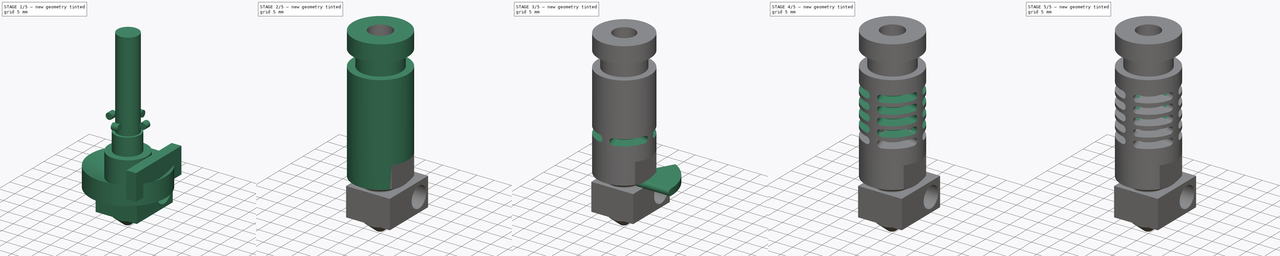
[diagram: build sequence overview — one tinted view per stage of 5, left to right]
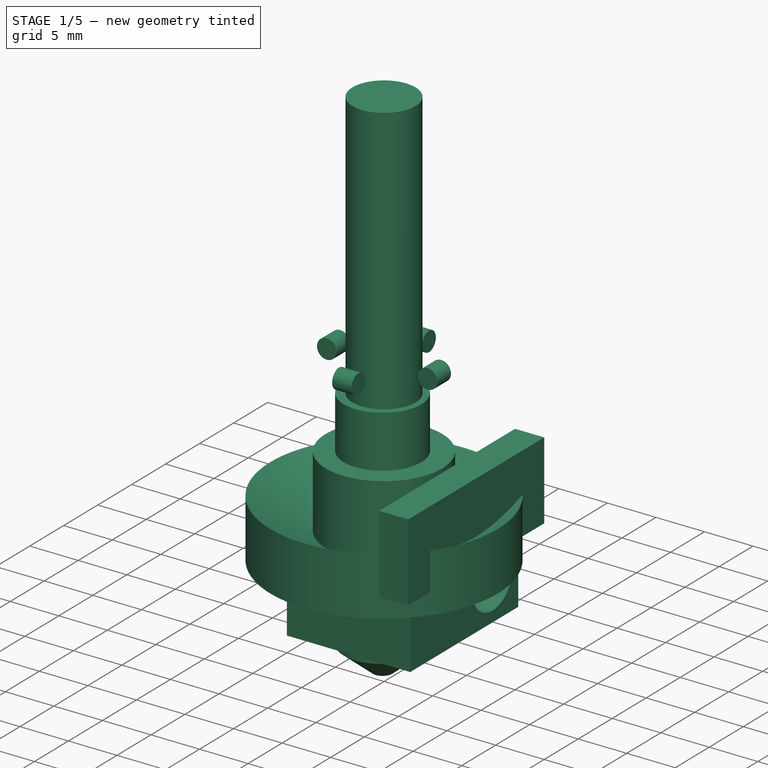
[diagram: stage 1 of 5 — iso view after this stage's code; geometry added in this stage tinted green]
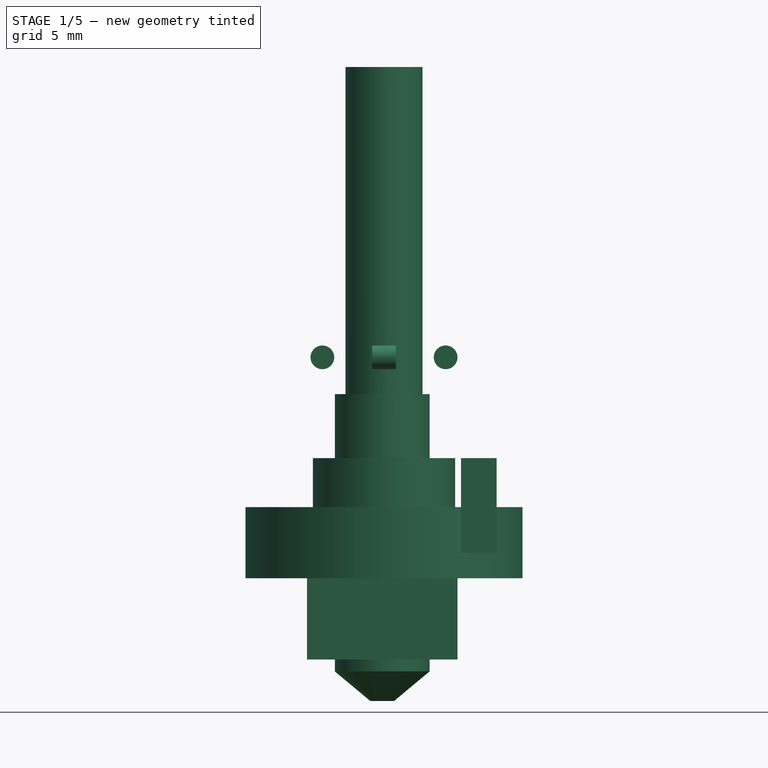
[diagram: stage 1 of 5 — front view after this stage's code; geometry added in this stage tinted green]
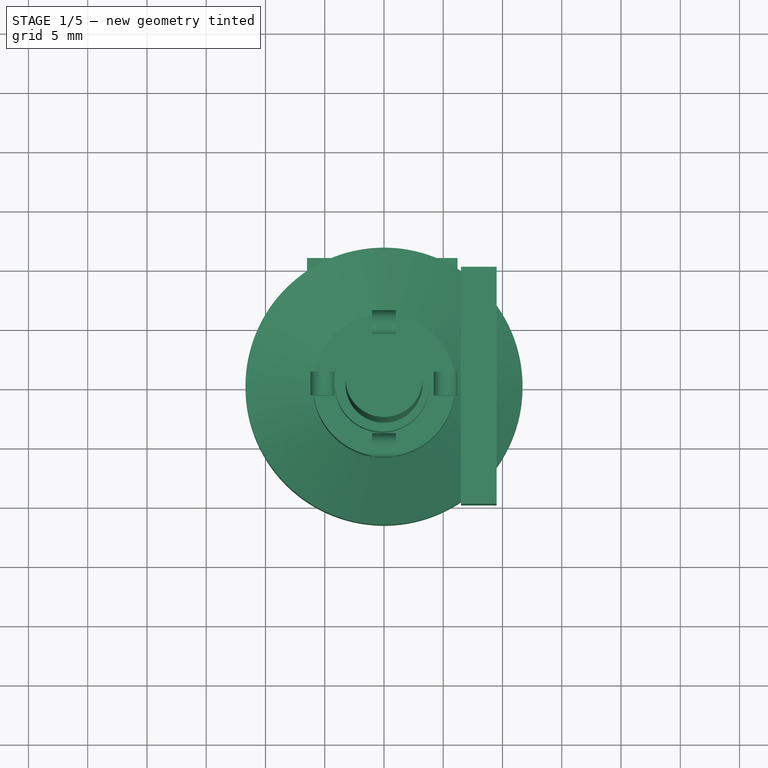
[diagram: stage 1 of 5 — top view after this stage's code; geometry added in this stage tinted green]
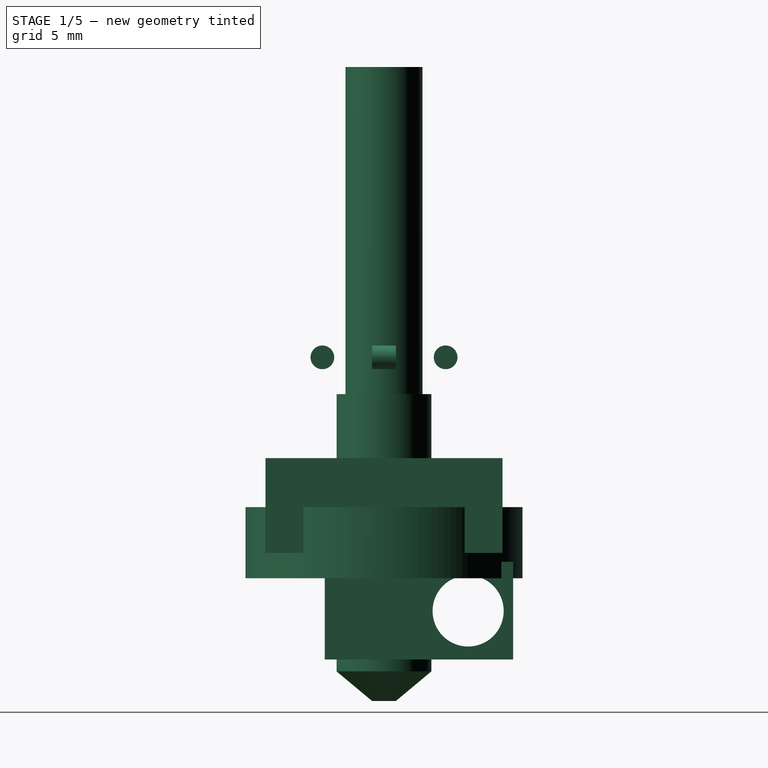
[diagram: stage 1 of 5 — right view after this stage's code; geometry added in this stage tinted green]
FCSTD DOCUMENT  (FreeCAD 0.14R3702 (Git))
Label: j-head
License: CC-BY 3.0
LicenseURL: http://creativecommons.org/licenses/by/3.0/
objects: Part::Cut×17, Part::Cylinder×13, Part::FeaturePython×9, Part::MultiFuse×6, Sketcher::SketchObject×2, PartDesign::Revolution×2, Part::Box×2, PartDesign::Pocket×1
note: 55 computed .brp shape members not serialized (recipe doc carries the construction recipe); baked Part::Feature solids carry a one-line shape summary decoded from their .brp

FEATURE [Part::Cylinder] Cylinder002  label="Cilindro002"
  Angle = 360
  Height = 10
  Placement = pos=(0,0,-2) rot=(0,0,1;0rad)
  Radius = 6
FEATURE [Part::Cylinder] Cylinder003  label="Cilindro003"
  Angle = 360
  Height = 42
  Placement = pos=(0,0,-1) rot=(0,0,1;0rad)
  Radius = 3.25
FEATURE [Part::Cylinder] Cylinder004  label="Cilindro004"
  Angle = 360
  Height = 4.2
  Placement = pos=(0,0,-1) rot=(0,0,1;0rad)
  Radius = 4
FEATURE [PartDesign::Revolution] Revolution
  Angle = 360
  Axis = (0,0,1)
  Base = (0,0,0)
  Placement = pos=(0,0,0) rot=(1,0,0;1.5708rad)
  ReferenceAxis = -> Sketch [V_Axis]
  Sketch = -> Sketch
FEATURE [Part::Box] Box  label="Cubo"
  Height = 8
  Length = 3
  Placement = pos=(6.5,-10,0) rot=(0,0,1;0rad)
  Width = 20
FEATURE [Part::Cylinder] Cylinder009  label="Cilindro009"
  Angle = 360
  Height = 2
  Placement = pos=(-1,5.2,16.5) rot=(0,1,0;1.5708rad)
  Radius = 1
FEATURE [Part::FeaturePython] Array005  # Draft array (typed FeaturePython)
  Angle = 360
  ArrayType = 1
  Axis = (0,0,1)
  Base = -> Cylinder009
  Center = (0,0,0)
  IntervalX = (1,0,0)
  IntervalY = (0,1,0)
  IntervalZ = (0,0,1)
  NumberPolar = 4
  NumberX = 0
  NumberY = 0
  NumberZ = 0
FEATURE [Sketcher::SketchObject] Sketch001
  Placement = pos=(12.7,0,0) rot=(0.57735,0.57735,0.57735;2.0944rad)
  sketch-geometry (1):
    g0: Circle CenterX=12.1 CenterY=4.1 CenterZ=0 NormalX=0 NormalY=0 NormalZ=1 Radius=3
  constraints (1):
    c: Radius(g0) = 3
FEATURE [PartDesign::Pocket] Pocket
  Length = 5
  Sketch = -> Sketch001
  Type = 1
FEATURE [PartDesign::Revolution] Revolution001
  Angle = 360
  Axis = (0,0,1)
  Base = (0,0,0)
  Placement = pos=(6.35,5,0) rot=(-1,0,0;4.71239rad)
FEATURE [Part::MultiFuse] Fusion006  label="hotend"
  Placement = pos=(-6.5,-5,-9) rot=(0,0,1;0rad)
  Shapes = -> [Pocket,Revolution001]
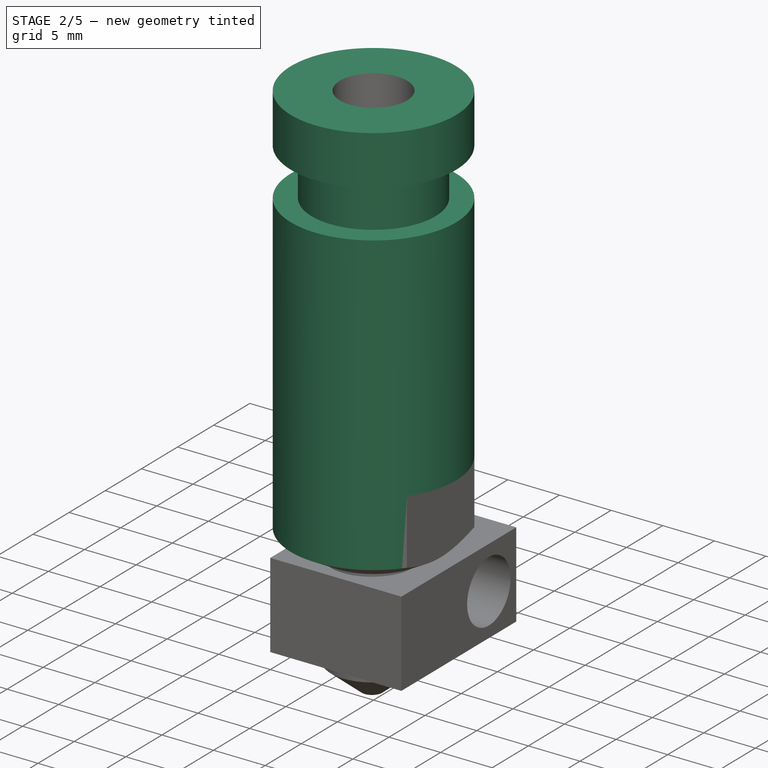
[diagram: stage 2 of 5 — iso view after this stage's code; geometry added in this stage tinted green]
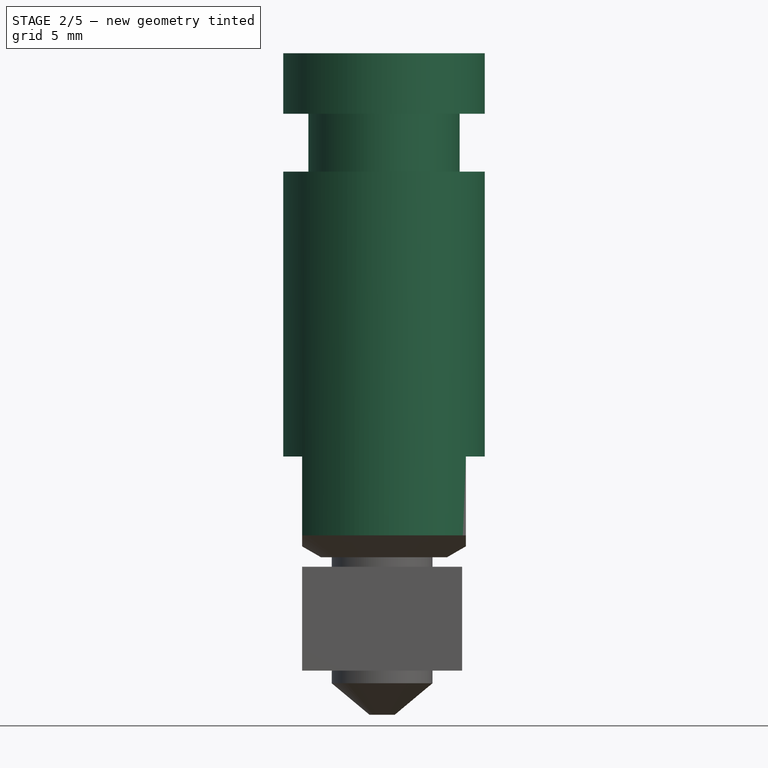
[diagram: stage 2 of 5 — front view after this stage's code; geometry added in this stage tinted green]
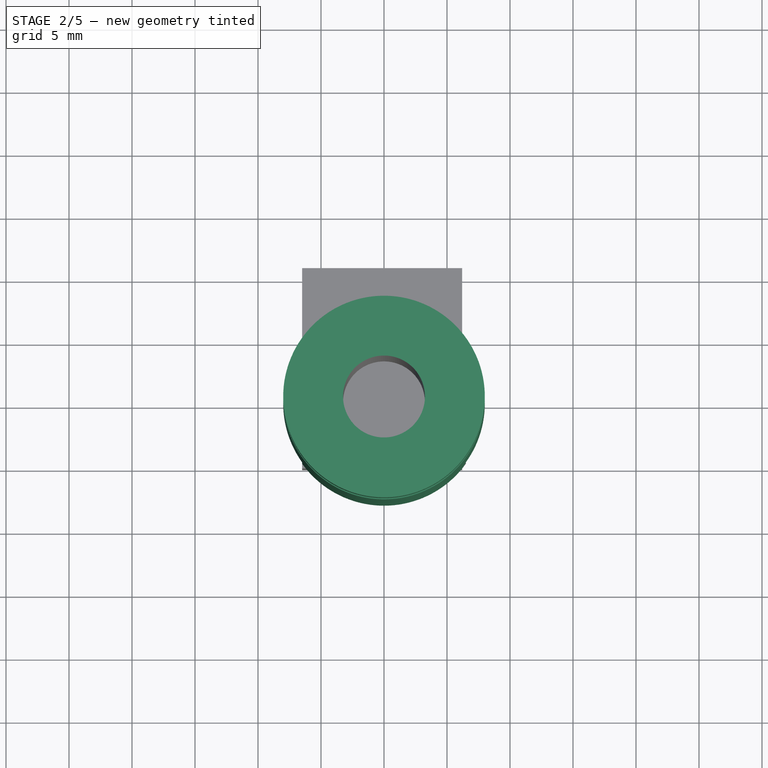
[diagram: stage 2 of 5 — top view after this stage's code; geometry added in this stage tinted green]
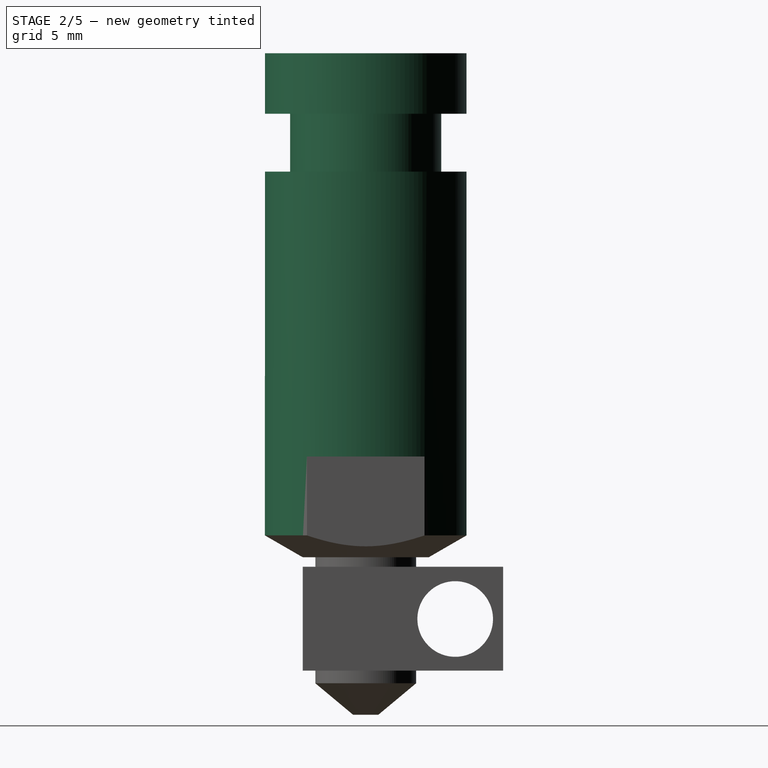
[diagram: stage 2 of 5 — right view after this stage's code; geometry added in this stage tinted green]
FEATURE [Part::Cylinder] Cylinder  label="Cilindro"
  Angle = 360
  Height = 40
  Radius = 8
FEATURE [Part::Cylinder] Cylinder001  label="Cilindro001"
  Angle = 360
  Height = 4.6
  Radius = 8
FEATURE [Part::Cut] Cut
  Base = -> Cylinder001
  Placement = pos=(0,0,30.6) rot=(0,0,1;0rad)
  Tool = -> Cylinder002
FEATURE [Part::Cut] Cut001
  Base = -> Cylinder
  Tool = -> Cut
FEATURE [Part::Cut] Cut002
  Base = -> Cut001
  Tool = -> Cylinder003
FEATURE [Sketcher::SketchObject] Sketch
  Placement = pos=(0,0,0) rot=(1,0,0;1.5708rad)
  sketch-geometry (4):
    g0: LineSegment [constr] StartX=-5 StartY=0 StartZ=0 EndX=5 EndY=0 EndZ=0
    g1: LineSegment StartX=-11.6906 StartY=3.86281 StartZ=0 EndX=-1.29847 EndY=-2.13708 EndZ=0
    g2: LineSegment StartX=-11.6906 StartY=-2.13708 StartZ=0 EndX=-11.6906 EndY=3.86281 EndZ=0
    g3: LineSegment StartX=-11.6906 StartY=-2.13708 StartZ=0 EndX=-1.29847 EndY=-2.13708 EndZ=0
  constraints (11):
    c: PointOnObject(g0,g-1)
    c: PointOnObject(g0,g-1)
    c: DistanceX(g0,g0) = -10
    c: Coincident(g2,g1)
    c: Vertical(g2)
    c: PointOnObject(g0,g1)
    c: Symmetric(g0,g0,g-2)
    c: Coincident(g3,g2)
    c: Coincident(g3,g1)
    c: Horizontal(g3)
    c: Angle(g0,g1) = 2.61799
FEATURE [Part::Cut] Cut003
  Base = -> Cut002
  Tool = -> Cylinder004
FEATURE [Part::Cut] Cut004
  Base = -> Cut003
  Tool = -> Revolution
FEATURE [Part::Box] Box001  label="Cubo001"
  Height = 8
  Length = 3
  Placement = pos=(-9.5,-10,0) rot=(0,0,1;0rad)
  Width = 20
FEATURE [Part::Cut] Cut006
  Base = -> Cut004
  Tool = -> Box
FEATURE [Part::Cut] Cut007
  Base = -> Cut006
  Tool = -> Box001
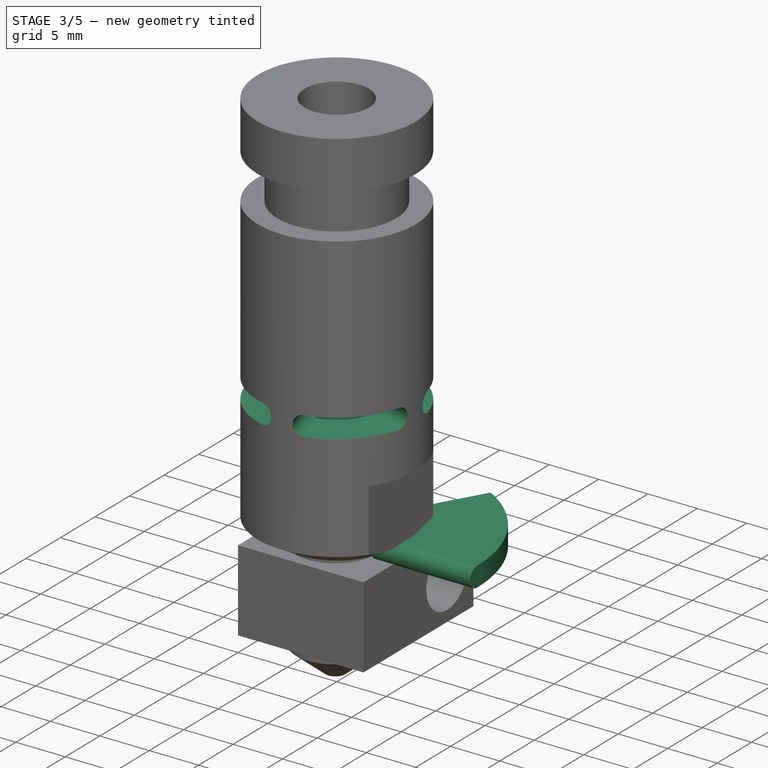
[diagram: stage 3 of 5 — iso view after this stage's code; geometry added in this stage tinted green]
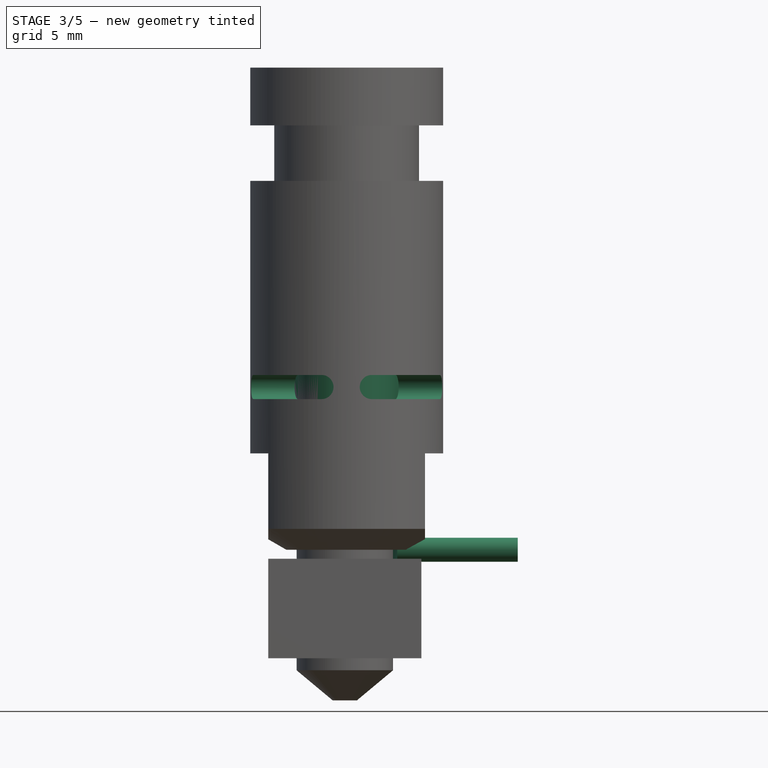
[diagram: stage 3 of 5 — front view after this stage's code; geometry added in this stage tinted green]
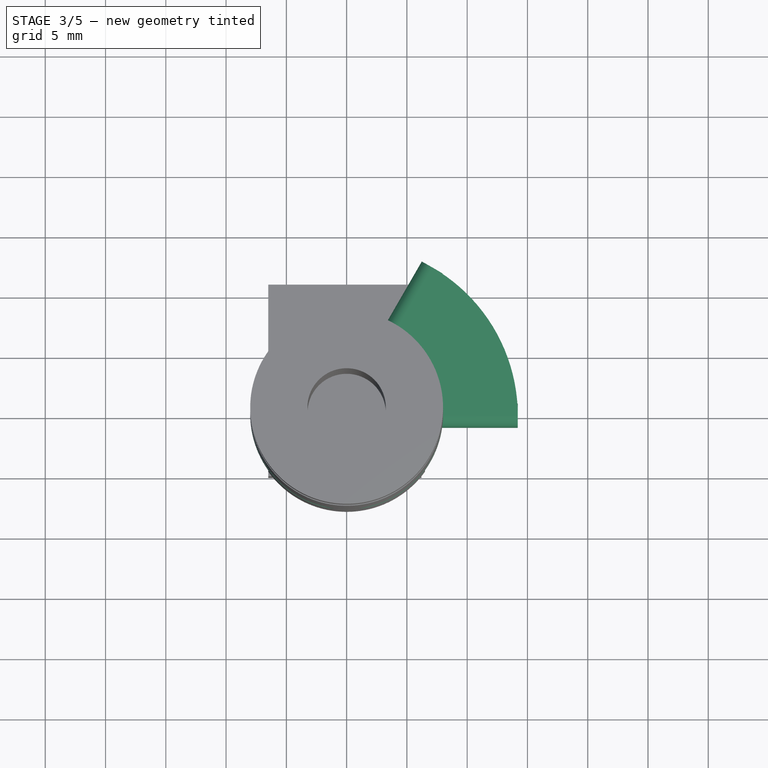
[diagram: stage 3 of 5 — top view after this stage's code; geometry added in this stage tinted green]
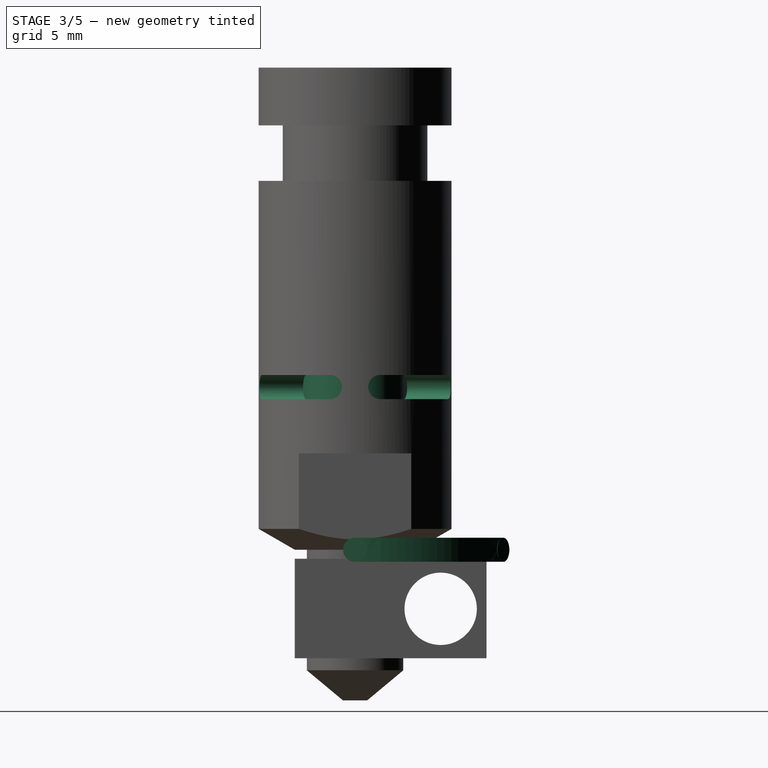
[diagram: stage 3 of 5 — right view after this stage's code; geometry added in this stage tinted green]
FEATURE [Part::Cylinder] Cylinder005  label="Cilindro005"
  Angle = 360
  Height = 10
  Placement = pos=(4.2,0,0) rot=(0,1,0;1.5708rad)
  Radius = 1
FEATURE [Part::Cylinder] Cylinder006  label="Cilindro006"
  Angle = 360
  Height = 2
  Placement = pos=(0,0,-1) rot=(0,0,1;0rad)
  Radius = 4.2
FEATURE [Part::Cylinder] Cylinder007  label="Cilindro007"
  Angle = 60
  Height = 2
  Placement = pos=(0,0,-1) rot=(0,0,1;0rad)
  Radius = 14.2
FEATURE [Part::Cut] Cut005
  Base = -> Cylinder007
  Tool = -> Cylinder006
FEATURE [Part::Cylinder] Cylinder008  label="Cilindro008"
  Angle = 360
  Height = 10
  Placement = pos=(2.1,3.63731,0) rot=(-0.447214,0.774597,0.447214;1.82348rad)
  Radius = 1
FEATURE [Part::MultiFuse] Fusion
  Shapes = -> [Cylinder005,Cut005]
FEATURE [Part::MultiFuse] Fusion001
  Shapes = -> [Cylinder008,Fusion]
FEATURE [Part::FeaturePython] Array  # Draft array (typed FeaturePython)
  Angle = 360
  ArrayType = 1
  Axis = (0,0,1)
  Base = -> Fusion001
  Center = (0,0,0)
  IntervalX = (1,0,0)
  IntervalY = (0,1,0)
  IntervalZ = (0,0,1)
  NumberPolar = 4
  NumberX = 1
  NumberY = 1
  NumberZ = 1
  Placement = pos=(0,0,13.5) rot=(0,0,1;0.261799rad)
FEATURE [Part::MultiFuse] Fusion002
  Shapes = -> [Cylinder008,Fusion]
FEATURE [Part::Cut] Cut008
  Base = -> Cut007
  Tool = -> Array
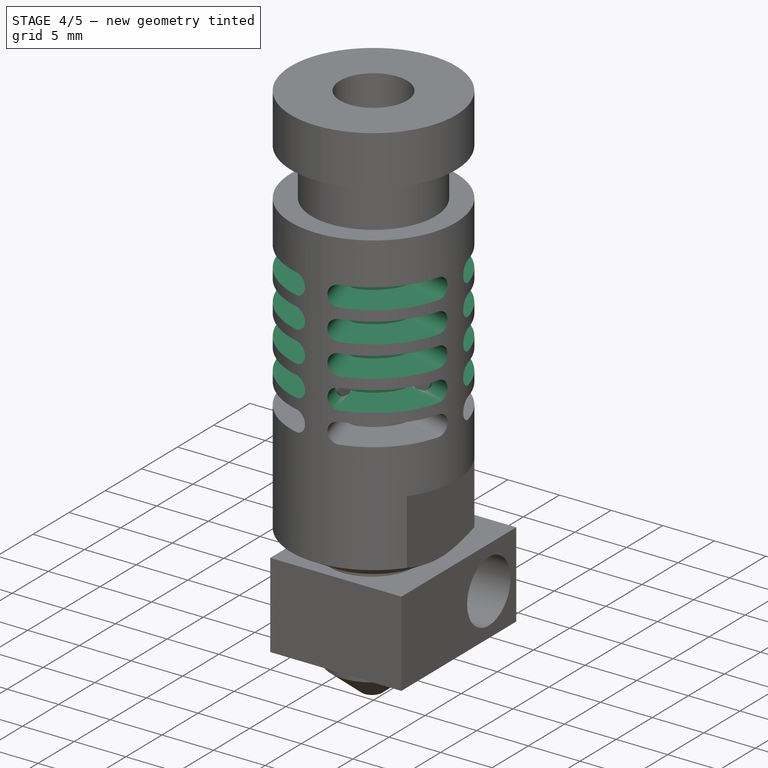
[diagram: stage 4 of 5 — iso view after this stage's code; geometry added in this stage tinted green]
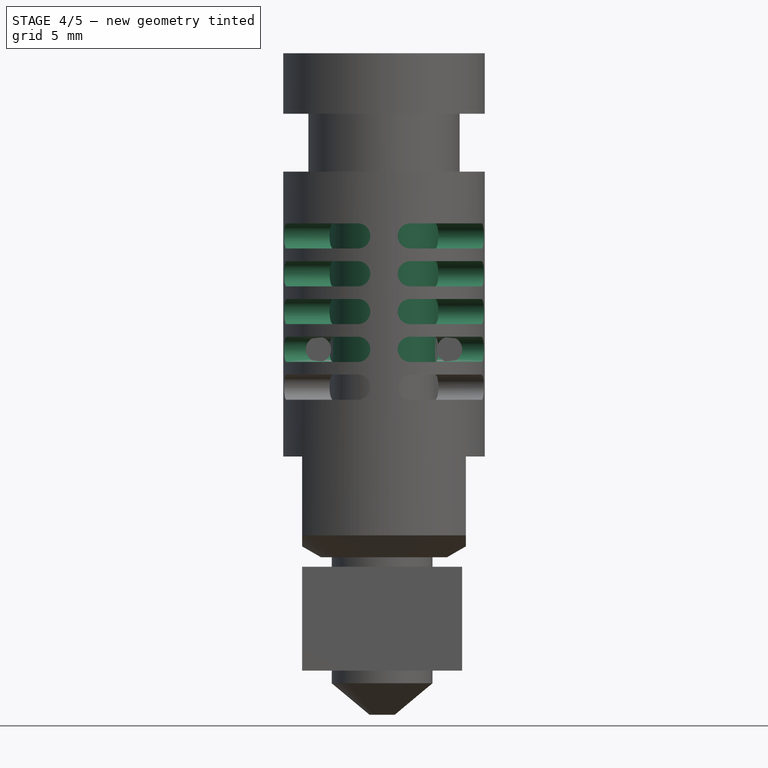
[diagram: stage 4 of 5 — front view after this stage's code; geometry added in this stage tinted green]
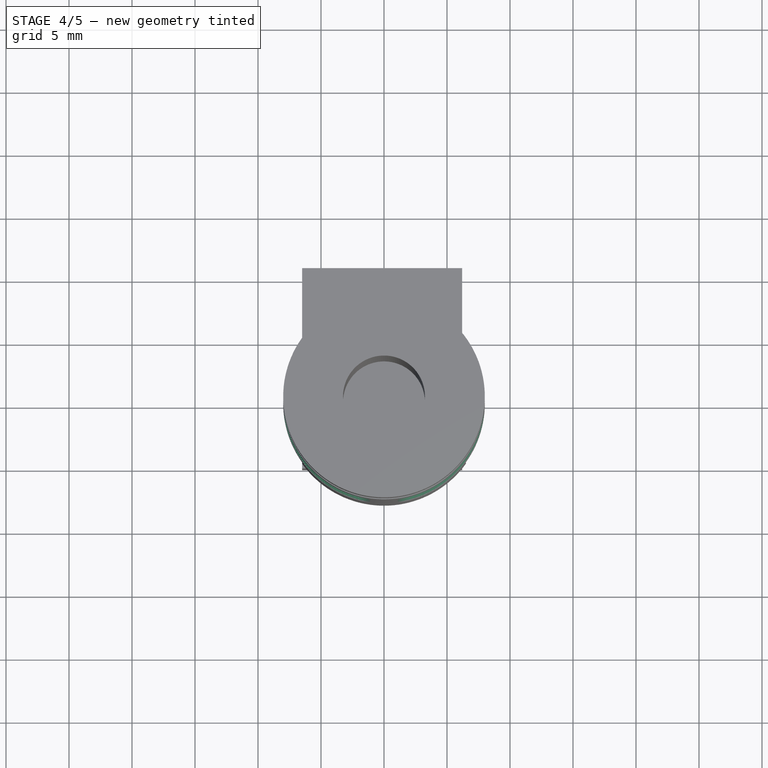
[diagram: stage 4 of 5 — top view after this stage's code; geometry added in this stage tinted green]
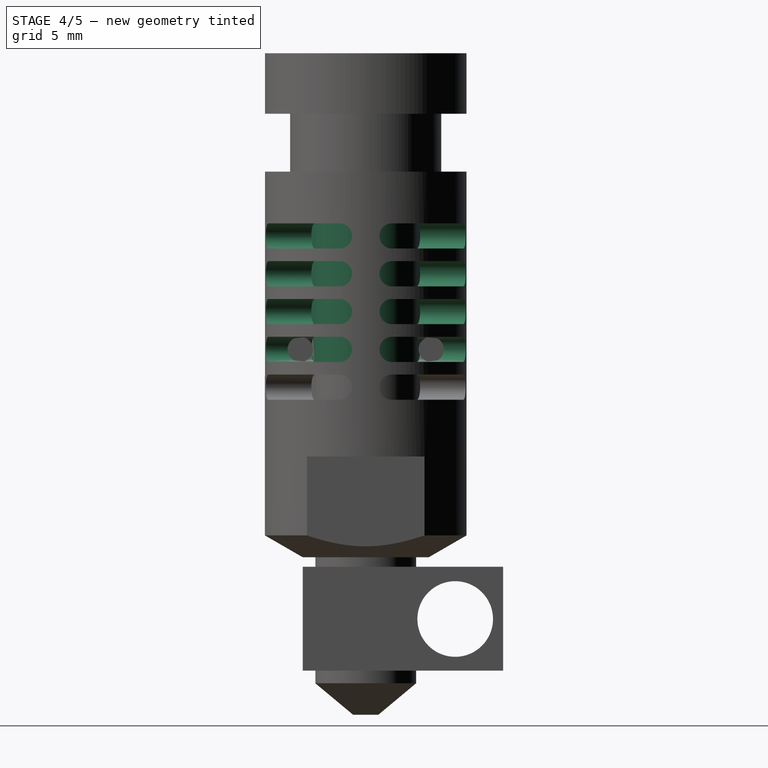
[diagram: stage 4 of 5 — right view after this stage's code; geometry added in this stage tinted green]
FEATURE [Part::FeaturePython] Array001  # Draft array (typed FeaturePython)
  Angle = 360
  ArrayType = 1
  Axis = (0,0,1)
  Base = -> Fusion002
  Center = (0,0,0)
  IntervalX = (1,0,0)
  IntervalY = (0,1,0)
  IntervalZ = (0,0,1)
  NumberPolar = 4
  NumberX = 1
  NumberY = 1
  NumberZ = 1
  Placement = pos=(0,0,16.5) rot=(0,0,1;0.261799rad)
FEATURE [Part::FeaturePython] Array002  # Draft array (typed FeaturePython)
  Angle = 360
  ArrayType = 1
  Axis = (0,0,1)
  Base = -> Fusion001
  Center = (0,0,0)
  IntervalX = (1,0,0)
  IntervalY = (0,1,0)
  IntervalZ = (0,0,1)
  NumberPolar = 4
  NumberX = 1
  NumberY = 1
  NumberZ = 1
  Placement = pos=(0,0,22.5) rot=(0,0,1;0.261799rad)
FEATURE [Part::MultiFuse] Fusion003
  Shapes = -> [Cylinder008,Fusion]
FEATURE [Part::FeaturePython] Array003  # Draft array (typed FeaturePython)
  Angle = 360
  ArrayType = 1
  Axis = (0,0,1)
  Base = -> Fusion003
  Center = (0,0,0)
  IntervalX = (1,0,0)
  IntervalY = (0,1,0)
  IntervalZ = (0,0,1)
  NumberPolar = 4
  NumberX = 1
  NumberY = 1
  NumberZ = 1
  Placement = pos=(0,0,19.5) rot=(0,0,1;0.261799rad)
FEATURE [Part::MultiFuse] Fusion004
  Shapes = -> [Cylinder008,Fusion]
FEATURE [Part::FeaturePython] Array004  # Draft array (typed FeaturePython)
  Angle = 360
  ArrayType = 1
  Axis = (0,0,1)
  Base = -> Fusion004
  Center = (0,0,0)
  IntervalX = (1,0,0)
  IntervalY = (0,1,0)
  IntervalZ = (0,0,1)
  NumberPolar = 4
  NumberX = 1
  NumberY = 1
  NumberZ = 1
  Placement = pos=(0,0,25.5) rot=(0,0,1;0.261799rad)
FEATURE [Part::Cut] Cut009
  Base = -> Cut008
  Tool = -> Array001
FEATURE [Part::Cut] Cut010
  Base = -> Cut009
  Tool = -> Array004
FEATURE [Part::Cut] Cut011
  Base = -> Cut010
  Tool = -> Array003
FEATURE [Part::Cut] Cut012
  Base = -> Cut011
  Tool = -> Array002
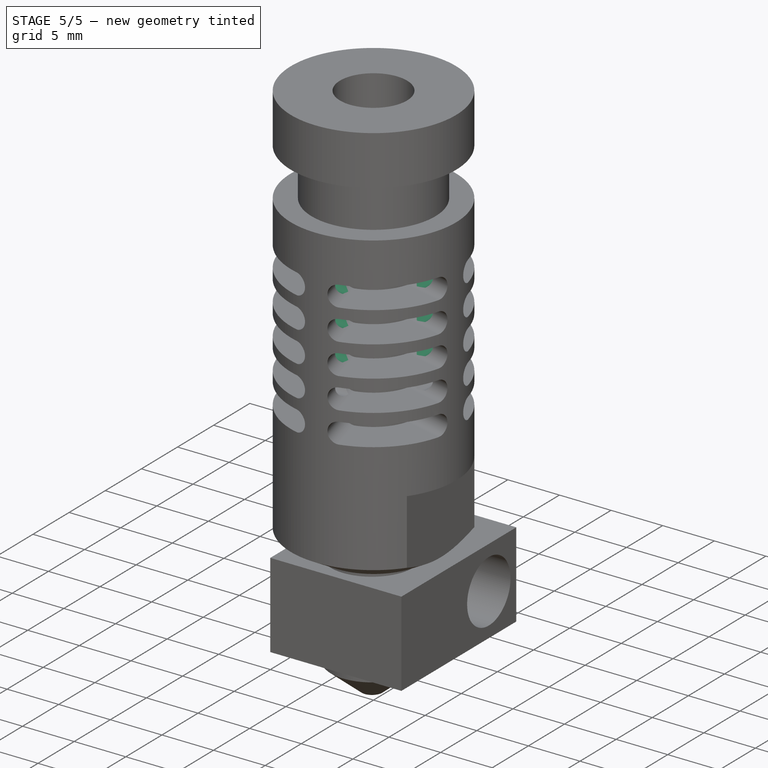
[diagram: stage 5 of 5 — iso view after this stage's code; geometry added in this stage tinted green]
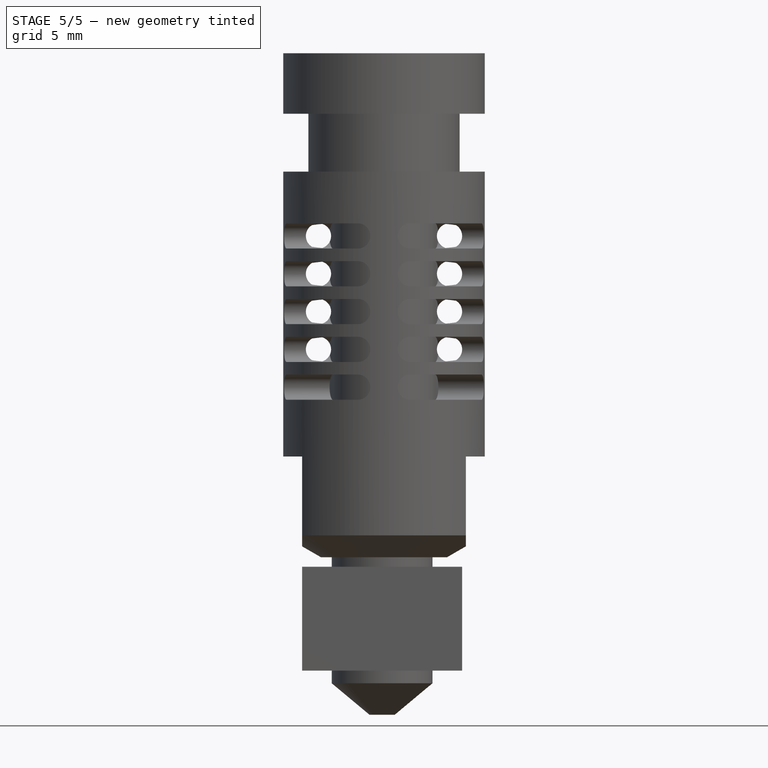
[diagram: stage 5 of 5 — front view after this stage's code; geometry added in this stage tinted green]
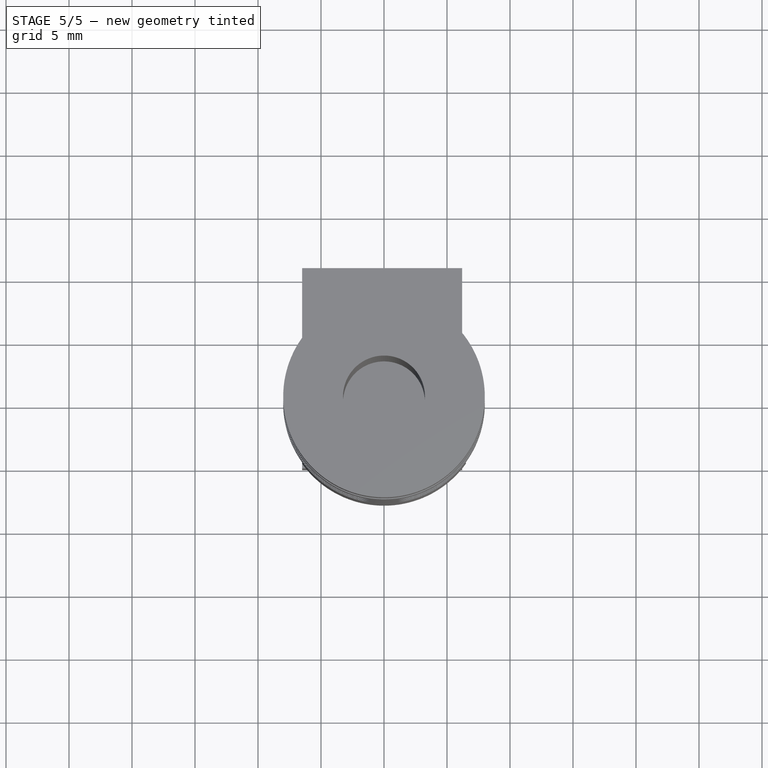
[diagram: stage 5 of 5 — top view after this stage's code; geometry added in this stage tinted green]
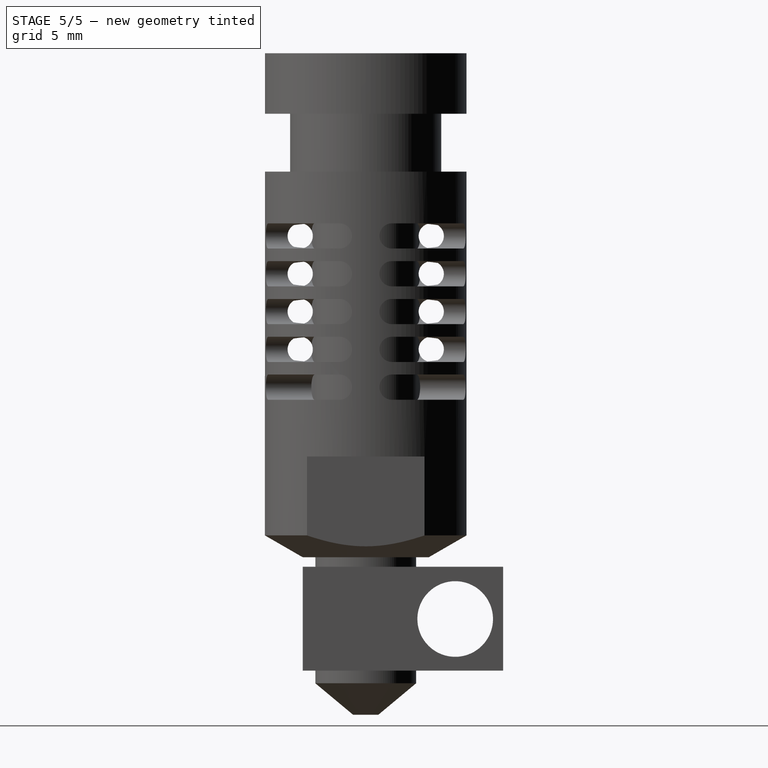
[diagram: stage 5 of 5 — right view after this stage's code; geometry added in this stage tinted green]
FEATURE [Part::Cylinder] Cylinder010  label="Cilindro010"
  Angle = 360
  Height = 2
  Placement = pos=(-1,5.2,16.5) rot=(0,1,0;1.5708rad)
  Radius = 1
FEATURE [Part::FeaturePython] Array006  # Draft array (typed FeaturePython)
  Angle = 360
  ArrayType = 1
  Axis = (0,0,1)
  Base = -> Cylinder010
  Center = (0,0,0)
  IntervalX = (1,0,0)
  IntervalY = (0,1,0)
  IntervalZ = (0,0,1)
  NumberPolar = 4
  NumberX = 0
  NumberY = 0
  NumberZ = 0
  Placement = pos=(0,0,3) rot=(0,0,1;0rad)
FEATURE [Part::Cylinder] Cylinder011  label="Cilindro011"
  Angle = 360
  Height = 2
  Placement = pos=(-1,5.2,16.5) rot=(0,1,0;1.5708rad)
  Radius = 1
FEATURE [Part::FeaturePython] Array007  # Draft array (typed FeaturePython)
  Angle = 360
  ArrayType = 1
  Axis = (0,0,1)
  Base = -> Cylinder011
  Center = (0,0,0)
  IntervalX = (1,0,0)
  IntervalY = (0,1,0)
  IntervalZ = (0,0,1)
  NumberPolar = 4
  NumberX = 0
  NumberY = 0
  NumberZ = 0
  Placement = pos=(0,0,6) rot=(0,0,1;0rad)
FEATURE [Part::Cylinder] Cylinder012  label="Cilindro012"
  Angle = 360
  Height = 2
  Placement = pos=(-1,5.2,16.5) rot=(0,1,0;1.5708rad)
  Radius = 1
FEATURE [Part::FeaturePython] Array008  # Draft array (typed FeaturePython)
  Angle = 360
  ArrayType = 1
  Axis = (0,0,1)
  Base = -> Cylinder012
  Center = (0,0,0)
  IntervalX = (1,0,0)
  IntervalY = (0,1,0)
  IntervalZ = (0,0,1)
  NumberPolar = 4
  NumberX = 0
  NumberY = 0
  NumberZ = 0
  Placement = pos=(0,0,9) rot=(0,0,1;0rad)
FEATURE [Part::Cut] Cut013
  Base = -> Cut012
  Tool = -> Array005
FEATURE [Part::Cut] Cut014
  Base = -> Cut013
  Tool = -> Array006
FEATURE [Part::Cut] Cut015
  Base = -> Cut014
  Tool = -> Array007
FEATURE [Part::Cut] Cut016  label="cuerpo j-head"
  Base = -> Cut015
  Tool = -> Array008
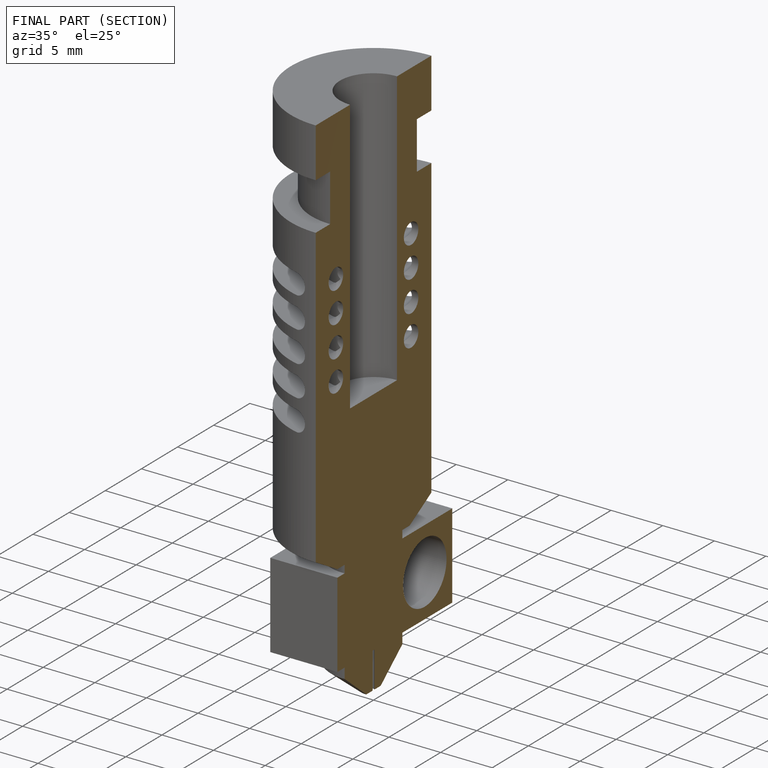
[diagram: finished part — half-section view (interior)]
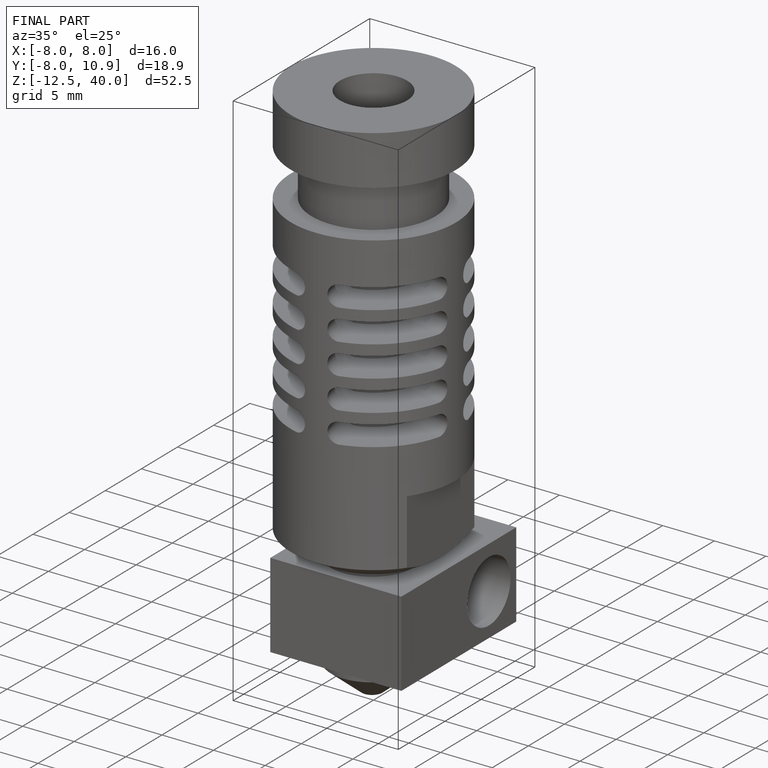
[diagram: finished part — iso view with bounding-box wireframe]
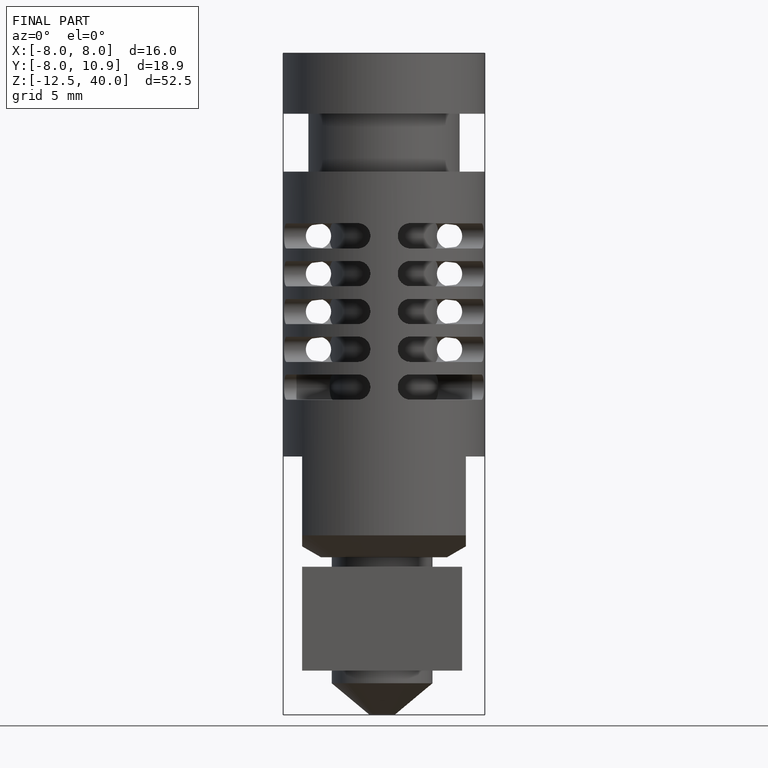
[diagram: finished part — front view with bounding-box wireframe]
